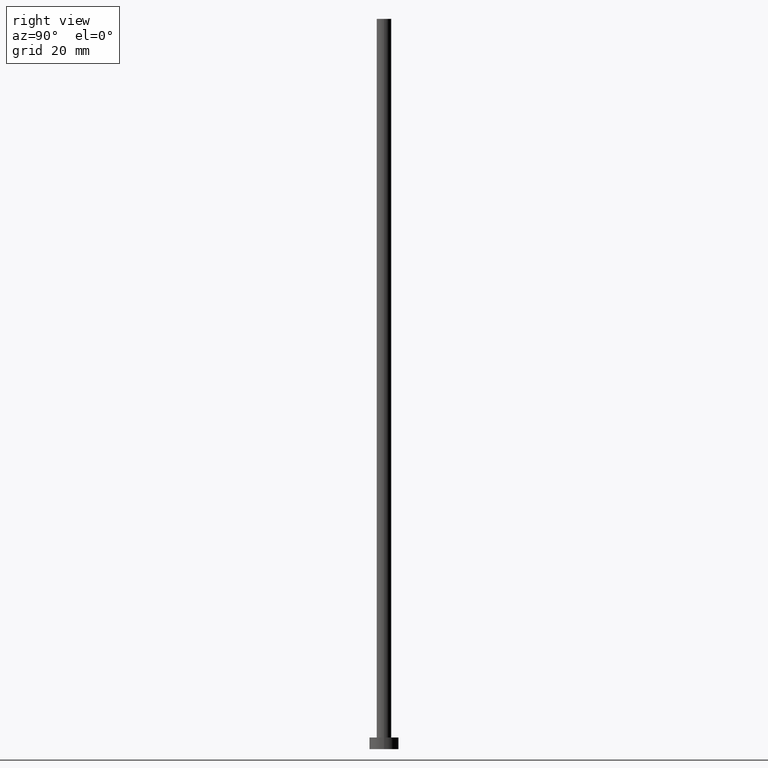
[diagram: clean part render]
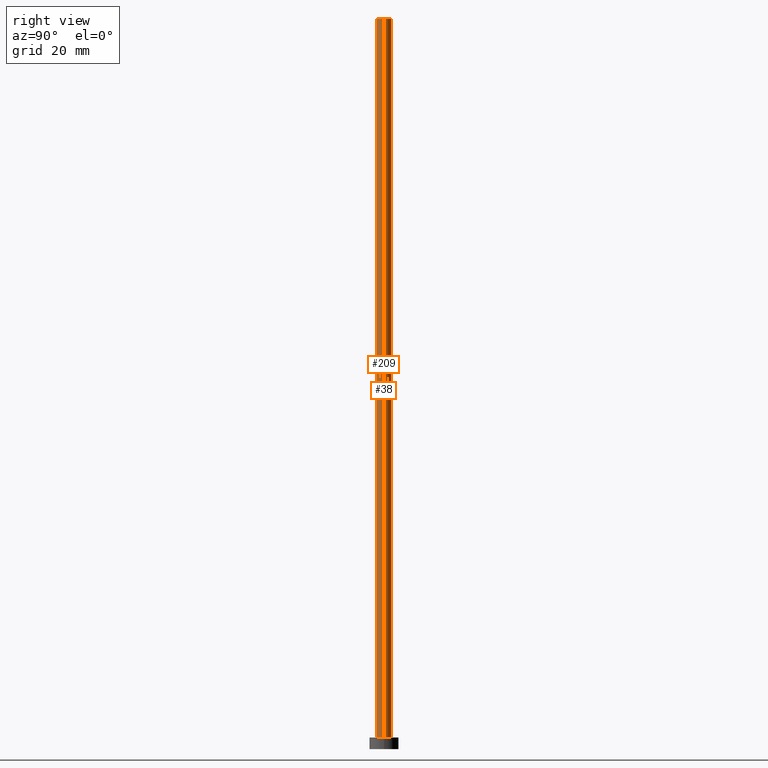
[diagram: same view with one multi-face feature highlighted, each face labeled with its STEP entity id]
A machine part, right view. The highlighted faces form ONE feature: a constant-radius fillet chain: 2 tangent blend faces with common blend radius 1.25 mm. The faces share edges in the B-rep.
Their STEP definitions:
[1] entity #38 (Cylinder):
#1 = CIRCLE ( 'NONE', #147, 1.250000000000000000 ) ;
#8 = DIRECTION ( 'NONE',  ( 0.000000000000000000, 0.000000000000000000, 1.000000000000000000 ) ) ;
#11 = DIRECTION ( 'NONE',  ( -0.000000000000000000, -0.000000000000000000, -1.000000000000000000 ) ) ;
#20 = VECTOR ( 'NONE', #11, 1000.000000000000000 ) ;
#28 = DIRECTION ( 'NONE',  ( -0.000000000000000000, -0.000000000000000000, -1.000000000000000000 ) ) ;
#36 = CARTESIAN_POINT ( 'NONE',  ( -1.250000000000000000, 0.000000000000000000, 125.0000000000000000 ) ) ;
#37 = CIRCLE ( 'NONE', #206, 1.250000000000000000 ) ;
#38 = ADVANCED_FACE ( 'NONE', ( #191 ), #166, .T. ) ;
#49 = CARTESIAN_POINT ( 'NONE',  ( 0.000000000000000000, 0.000000000000000000, 2.000000000000000000 ) ) ;
#54 = CARTESIAN_POINT ( 'NONE',  ( 1.250000000000000000, 1.530808498934191571E-16, 125.0000000000000000 ) ) ;
#59 = EDGE_CURVE ( 'NONE', #216, #78, #1, .T. ) ;
#64 = EDGE_CURVE ( 'NONE', #208, #245, #37, .T. ) ;
#69 = AXIS2_PLACEMENT_3D ( 'NONE', #247, #138, #224 ) ;
#75 = CARTESIAN_POINT ( 'NONE',  ( -1.250000000000000000, 0.000000000000000000, 125.0000000000000000 ) ) ;
#78 = VERTEX_POINT ( 'NONE', #36 ) ;
#85 = ORIENTED_EDGE ( 'NONE', *, *, #194, .F. ) ;
#86 = EDGE_CURVE ( 'NONE', #216, #208, #93, .T. ) ;
#93 = LINE ( 'NONE', #215, #119 ) ;
#105 = EDGE_LOOP ( 'NONE', ( #151, #243, #210, #85 ) ) ;
#119 = VECTOR ( 'NONE', #28, 1000.000000000000000 ) ;
#126 = CARTESIAN_POINT ( 'NONE',  ( -1.250000000000000000, 0.000000000000000000, 2.000000000000000000 ) ) ;
#128 = DIRECTION ( 'NONE',  ( 1.000000000000000000, 0.000000000000000000, 0.000000000000000000 ) ) ;
#138 = DIRECTION ( 'NONE',  ( -0.000000000000000000, -0.000000000000000000, -1.000000000000000000 ) ) ;
#147 = AXIS2_PLACEMENT_3D ( 'NONE', #150, #233, #198 ) ;
#150 = CARTESIAN_POINT ( 'NONE',  ( 0.000000000000000000, 0.000000000000000000, 125.0000000000000000 ) ) ;
#151 = ORIENTED_EDGE ( 'NONE', *, *, #59, .F. ) ;
#166 = CYLINDRICAL_SURFACE ( 'NONE', #69, 1.250000000000000000 ) ;
#191 = FACE_OUTER_BOUND ( 'NONE', #105, .T. ) ;
#194 = EDGE_CURVE ( 'NONE', #78, #245, #221, .T. ) ;
#198 = DIRECTION ( 'NONE',  ( 1.000000000000000000, 0.000000000000000000, 0.000000000000000000 ) ) ;
#200 = CARTESIAN_POINT ( 'NONE',  ( 1.250000000000000000, 1.530808498934191571E-16, 2.000000000000000000 ) ) ;
#206 = AXIS2_PLACEMENT_3D ( 'NONE', #49, #8, #128 ) ;
#208 = VERTEX_POINT ( 'NONE', #200 ) ;
#210 = ORIENTED_EDGE ( 'NONE', *, *, #64, .T. ) ;
#215 = CARTESIAN_POINT ( 'NONE',  ( 1.250000000000000000, 1.530808498934191571E-16, 125.0000000000000000 ) ) ;
#216 = VERTEX_POINT ( 'NONE', #54 ) ;
#221 = LINE ( 'NONE', #75, #20 ) ;
#224 = DIRECTION ( 'NONE',  ( -1.000000000000000000, 0.000000000000000000, 0.000000000000000000 ) ) ;
#233 = DIRECTION ( 'NONE',  ( 0.000000000000000000, 0.000000000000000000, 1.000000000000000000 ) ) ;
#243 = ORIENTED_EDGE ( 'NONE', *, *, #86, .T. ) ;
#245 = VERTEX_POINT ( 'NONE', #126 ) ;
#247 = CARTESIAN_POINT ( 'NONE',  ( 0.000000000000000000, 0.000000000000000000, 125.0000000000000000 ) ) ;
[2] entity #209 (Cylinder):
#2 = ORIENTED_EDGE ( 'NONE', *, *, #86, .F. ) ;
#9 = EDGE_CURVE ( 'NONE', #245, #208, #239, .T. ) ;
#11 = DIRECTION ( 'NONE',  ( -0.000000000000000000, -0.000000000000000000, -1.000000000000000000 ) ) ;
#19 = ORIENTED_EDGE ( 'NONE', *, *, #24, .F. ) ;
#20 = VECTOR ( 'NONE', #11, 1000.000000000000000 ) ;
#24 = EDGE_CURVE ( 'NONE', #78, #216, #228, .T. ) ;
#28 = DIRECTION ( 'NONE',  ( -0.000000000000000000, -0.000000000000000000, -1.000000000000000000 ) ) ;
#36 = CARTESIAN_POINT ( 'NONE',  ( -1.250000000000000000, 0.000000000000000000, 125.0000000000000000 ) ) ;
#46 = DIRECTION ( 'NONE',  ( -1.000000000000000000, 0.000000000000000000, 0.000000000000000000 ) ) ;
#54 = CARTESIAN_POINT ( 'NONE',  ( 1.250000000000000000, 1.530808498934191571E-16, 125.0000000000000000 ) ) ;
#57 = AXIS2_PLACEMENT_3D ( 'NONE', #79, #123, #162 ) ;
#71 = ORIENTED_EDGE ( 'NONE', *, *, #9, .T. ) ;
#75 = CARTESIAN_POINT ( 'NONE',  ( -1.250000000000000000, 0.000000000000000000, 125.0000000000000000 ) ) ;
#78 = VERTEX_POINT ( 'NONE', #36 ) ;
#79 = CARTESIAN_POINT ( 'NONE',  ( 0.000000000000000000, 0.000000000000000000, 125.0000000000000000 ) ) ;
#86 = EDGE_CURVE ( 'NONE', #216, #208, #93, .T. ) ;
#93 = LINE ( 'NONE', #215, #119 ) ;
#100 = ORIENTED_EDGE ( 'NONE', *, *, #194, .T. ) ;
#119 = VECTOR ( 'NONE', #28, 1000.000000000000000 ) ;
#123 = DIRECTION ( 'NONE',  ( 0.000000000000000000, 0.000000000000000000, 1.000000000000000000 ) ) ;
#126 = CARTESIAN_POINT ( 'NONE',  ( -1.250000000000000000, 0.000000000000000000, 2.000000000000000000 ) ) ;
#132 = AXIS2_PLACEMENT_3D ( 'NONE', #230, #236, #46 ) ;
#141 = AXIS2_PLACEMENT_3D ( 'NONE', #161, #187, #241 ) ;
#142 = EDGE_LOOP ( 'NONE', ( #2, #19, #100, #71 ) ) ;
#155 = CYLINDRICAL_SURFACE ( 'NONE', #132, 1.250000000000000000 ) ;
#161 = CARTESIAN_POINT ( 'NONE',  ( 0.000000000000000000, 0.000000000000000000, 2.000000000000000000 ) ) ;
#162 = DIRECTION ( 'NONE',  ( 1.000000000000000000, 0.000000000000000000, 0.000000000000000000 ) ) ;
#187 = DIRECTION ( 'NONE',  ( 0.000000000000000000, 0.000000000000000000, 1.000000000000000000 ) ) ;
#194 = EDGE_CURVE ( 'NONE', #78, #245, #221, .T. ) ;
#200 = CARTESIAN_POINT ( 'NONE',  ( 1.250000000000000000, 1.530808498934191571E-16, 2.000000000000000000 ) ) ;
#208 = VERTEX_POINT ( 'NONE', #200 ) ;
#209 = ADVANCED_FACE ( 'NONE', ( #238 ), #155, .T. ) ;
#215 = CARTESIAN_POINT ( 'NONE',  ( 1.250000000000000000, 1.530808498934191571E-16, 125.0000000000000000 ) ) ;
#216 = VERTEX_POINT ( 'NONE', #54 ) ;
#221 = LINE ( 'NONE', #75, #20 ) ;
#228 = CIRCLE ( 'NONE', #57, 1.250000000000000000 ) ;
#230 = CARTESIAN_POINT ( 'NONE',  ( 0.000000000000000000, 0.000000000000000000, 125.0000000000000000 ) ) ;
#236 = DIRECTION ( 'NONE',  ( -0.000000000000000000, -0.000000000000000000, -1.000000000000000000 ) ) ;
#238 = FACE_OUTER_BOUND ( 'NONE', #142, .T. ) ;
#239 = CIRCLE ( 'NONE', #141, 1.250000000000000000 ) ;
#241 = DIRECTION ( 'NONE',  ( 1.000000000000000000, 0.000000000000000000, 0.000000000000000000 ) ) ;
#245 = VERTEX_POINT ( 'NONE', #126 ) ;